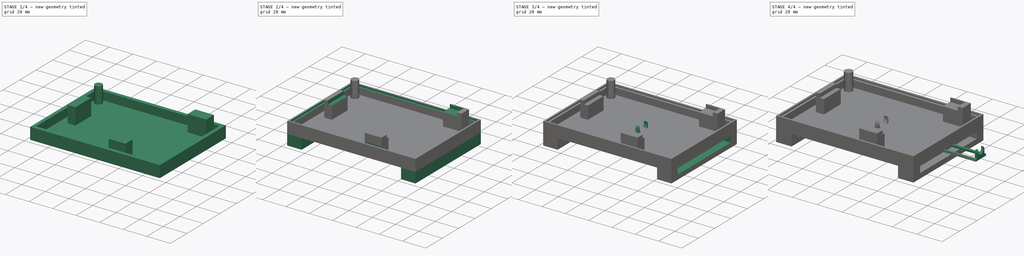
[diagram: build sequence overview — one tinted view per stage of 4, left to right]
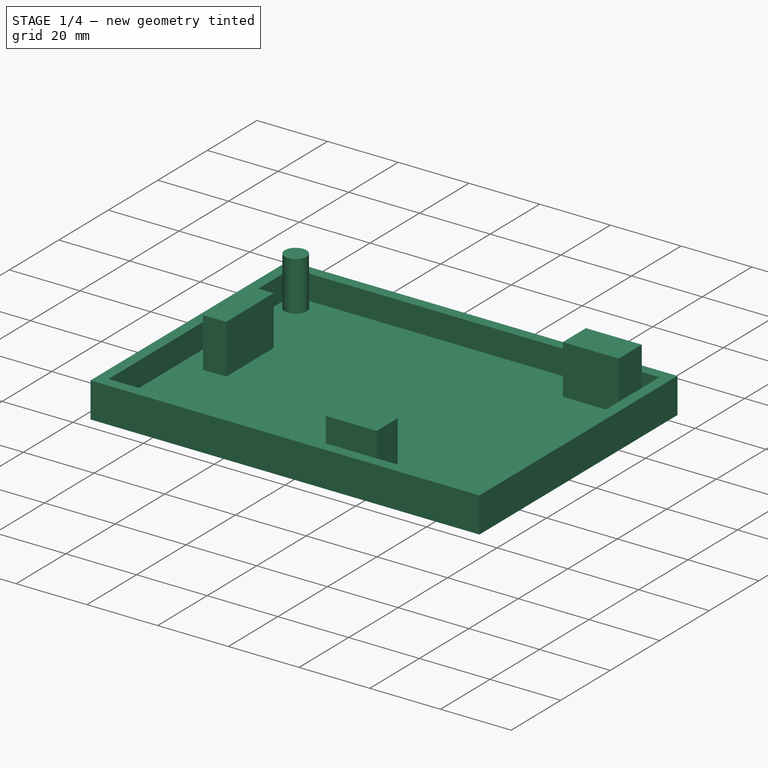
[diagram: stage 1 of 4 — iso view after this stage's code; geometry added in this stage tinted green]
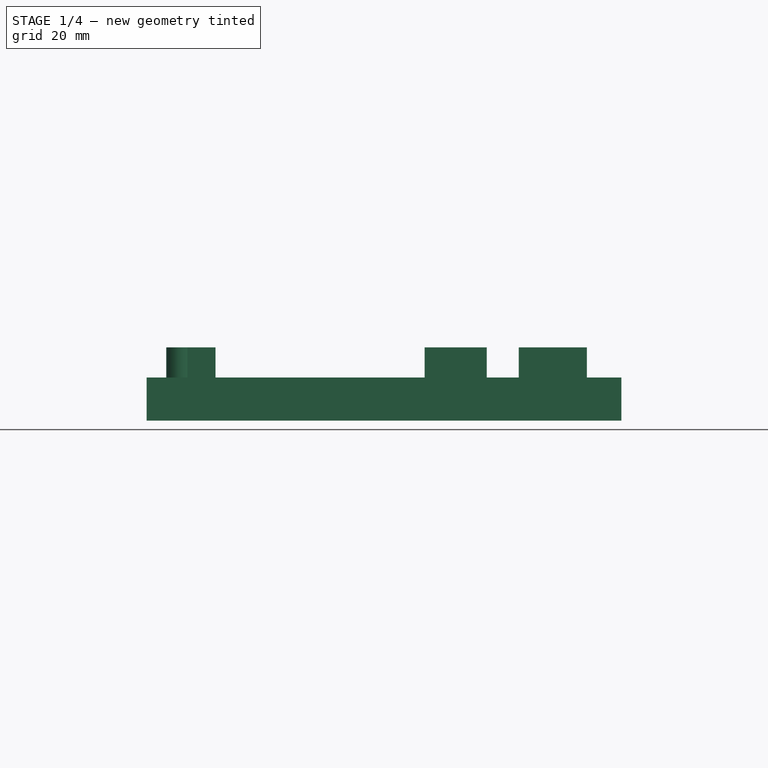
[diagram: stage 1 of 4 — front view after this stage's code; geometry added in this stage tinted green]
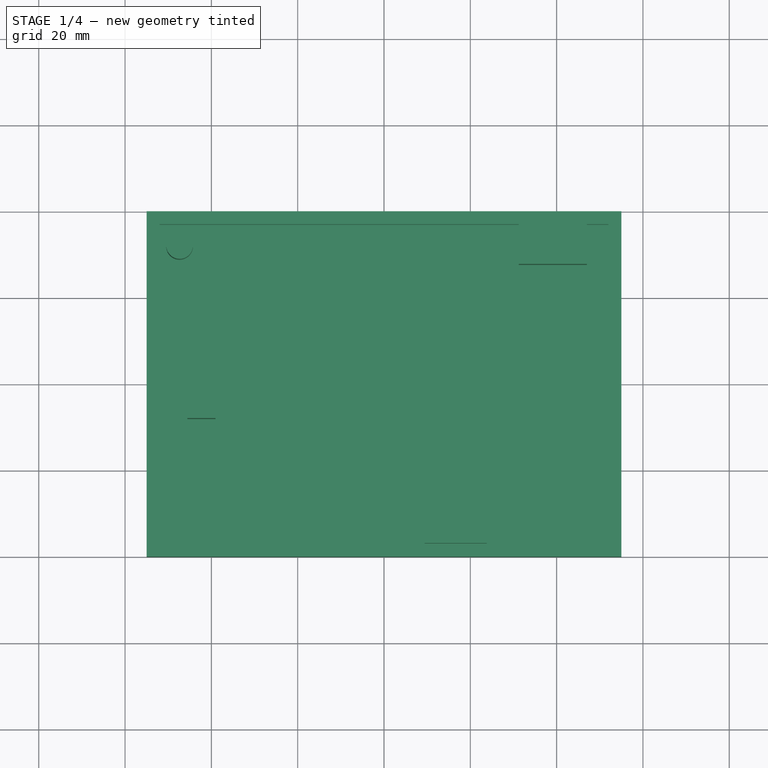
[diagram: stage 1 of 4 — top view after this stage's code; geometry added in this stage tinted green]
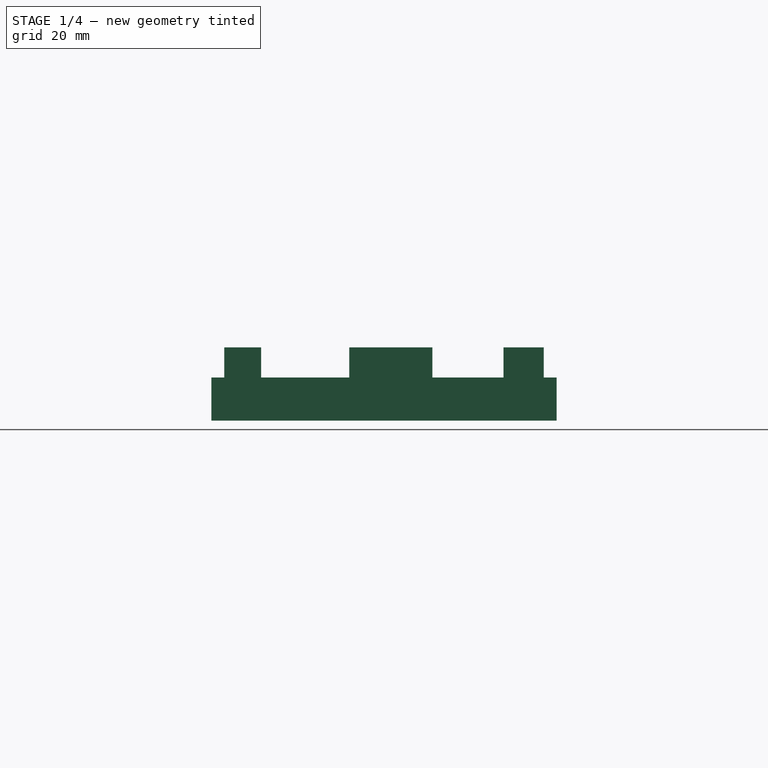
[diagram: stage 1 of 4 — right view after this stage's code; geometry added in this stage tinted green]
FCSTD DOCUMENT  (FreeCAD 1.0R39109 (Git))
Label: main_3D_bottom
License: All rights reserved
LicenseURL: http://en.wikipedia.org/wiki/All_rights_reserved
objects: Sketcher::SketchObject×12, PartDesign::Pad×6, PartDesign::Pocket×5, PartDesign::Body×3, App::VarSet×1, App::Part×1
note: 60 computed .brp shape members not serialized (recipe doc carries the construction recipe); baked Part::Feature solids carry a one-line shape summary decoded from their .brp
EXTERNAL_REF file=pcb.FCStd obj=VarSet

FEATURE [Sketcher::SketchObject] Sketch
  ArcFitTolerance = 0
  AttachmentSupport = -> [XY_Plane001]
  FullyConstrained = true
  MakeInternals = false
  MapMode = 5
  expr: Constraints[10] = VarSet.box_len
  expr: Constraints[9] = VarSet.box_width
  sketch-geometry (4):
    g0: LineSegment StartX=-55 StartY=40 StartZ=0 EndX=55 EndY=40 EndZ=0
    g1: LineSegment StartX=55 StartY=40 StartZ=0 EndX=55 EndY=-40 EndZ=0
    g2: LineSegment StartX=55 StartY=-40 StartZ=0 EndX=-55 EndY=-40 EndZ=0
    g3: LineSegment StartX=-55 StartY=-40 StartZ=0 EndX=-55 EndY=40 EndZ=0
  constraints (11):
    c: Coincident(g0,g1)
    c: Coincident(g1,g2)
    c: Coincident(g2,g3)
    c: Coincident(g3,g0)
    c: Horizontal(g0)
    c: Horizontal(g2)
    c: Vertical(g1)
    c: Vertical(g3)
    c: Symmetric(g0,g1,g-1)
    c: DistanceX(g0,g0) = 110
    c: DistanceY(g1,g1) = 80
FEATURE [PartDesign::Pad] Pad
  Direction = (0,0,1)
  Length = 10
  Length2 = 10
  Profile = -> Sketch
  ReferenceAxis = -> Sketch [N_Axis]
  Suppressed = false
  Type = 0
FEATURE [Sketcher::SketchObject] Sketch001
  ArcFitTolerance = 0
  AttachmentSupport = -> [Pad]
  ExternalGeometry = -> [Pad]
  FullyConstrained = true
  MakeInternals = false
  MapMode = 5
  Placement = pos=(0,0,10) rot=(0,0,1;0rad)
  expr: Constraints[16] = VarSet.Width
  sketch-geometry (6):
    g0: LineSegment StartX=-52 StartY=37 StartZ=0 EndX=52 EndY=37 EndZ=0
    g1: LineSegment StartX=52 StartY=37 StartZ=0 EndX=52 EndY=-37 EndZ=0
    g2: LineSegment StartX=52 StartY=-37 StartZ=0 EndX=-52 EndY=-37 EndZ=0
    g3: LineSegment StartX=-52 StartY=-37 StartZ=0 EndX=-52 EndY=37 EndZ=0
    g4: LineSegment [constr] StartX=52 StartY=37 StartZ=0 EndX=55 EndY=37 EndZ=0
    g5: LineSegment [constr] StartX=52 StartY=37 StartZ=0 EndX=52 EndY=40 EndZ=0
  constraints (17):
    c: Coincident(g0,g1)
    c: Coincident(g1,g2)
    c: Coincident(g2,g3)
    c: Coincident(g3,g0)
    c: Horizontal(g0)
    c: Horizontal(g2)
    c: Vertical(g1)
    c: Vertical(g3)
    c: Symmetric(g0,g1,g-1)
    c: Coincident(g4,g0)
    c: PointOnObject(g4,g-3)
    c: Horizontal(g4)
    c: Coincident(g5,g0)
    c: PointOnObject(g5,g-4)
    c: Vertical(g5)
    c: Equal(g5,g4)
    c: DistanceX(g4,g4) = 3
FEATURE [PartDesign::Pocket] Pocket
  BaseFeature = -> Pad
  Direction = (0,0,-1)
  Length = 0
  Length2 = 5
  Offset = -3
  Profile = -> Sketch001
  ReferenceAxis = -> Sketch001 [N_Axis]
  Suppressed = false
  Type = 3
  UpToFace = -> Pad [Face5]
  expr: Offset = -VarSet.Width
FEATURE [PartDesign::Body] Body001  label="Antenne_holder"
  AllowCompound = false
  Group = -> [Sketch002,Pad001,Sketch003,Pad002,Sketch005,Pad003,Sketch006,Pocket001]
  Origin = -> Origin002
  Placement = pos=(-35.827,17.488,2) rot=(0,0,-1;0.523599rad)
  Tip = -> Pocket001
FEATURE [Sketcher::SketchObject] Sketch007
  ArcFitTolerance = 1e-06
  AttachmentSupport = -> [Pocket]
  ExternalGeometry = -> [Pocket]
  FullyConstrained = false
  MakeInternals = false
  MapMode = 5
  Placement = pos=(0,0,3) rot=(0,0,1;0rad)
  sketch-geometry (13):
    g0: LineSegment StartX=-45.5641 StartY=11.1988 StartZ=0 EndX=-45.5641 EndY=-8.03746 EndZ=0
    g1: LineSegment StartX=-45.5641 StartY=-8.03746 StartZ=0 EndX=-39.0375 EndY=-8.03746 EndZ=0
    g2: LineSegment StartX=-39.0375 StartY=-8.03746 StartZ=0 EndX=-39.0375 EndY=11.1988 EndZ=0
    g3: LineSegment StartX=-39.0375 StartY=11.1988 StartZ=0 EndX=-45.5641 EndY=11.1988 EndZ=0
    g4: LineSegment StartX=9.41959 StartY=-28.476 StartZ=0 EndX=9.41959 EndY=-37 EndZ=0
    g5: LineSegment StartX=9.41959 StartY=-37 StartZ=0 EndX=23.821 EndY=-37 EndZ=0
    g6: LineSegment StartX=23.821 StartY=-37 StartZ=0 EndX=23.821 EndY=-28.476 EndZ=0
    g7: LineSegment StartX=23.821 StartY=-28.476 StartZ=0 EndX=9.41959 EndY=-28.476 EndZ=0
    g8: LineSegment StartX=31.2094 StartY=37 StartZ=0 EndX=31.2094 EndY=27.6871 EndZ=0
    g9: LineSegment StartX=31.2094 StartY=27.6871 StartZ=0 EndX=47.0106 EndY=27.6871 EndZ=0
    g10: LineSegment StartX=47.0106 StartY=27.6871 StartZ=0 EndX=47.0106 EndY=37 EndZ=0
    g11: LineSegment StartX=47.0106 StartY=37 StartZ=0 EndX=31.2094 EndY=37 EndZ=0
    g12: Circle CenterX=-47.363 CenterY=31.9613 CenterZ=0 NormalX=0 NormalY=0 NormalZ=1 AngleXU=0 Radius=3.09085
  constraints (26):
    c: Coincident(g0,g1)
    c: Coincident(g1,g2)
    c: Coincident(g2,g3)
    c: Coincident(g3,g0)
    c: Vertical(g0)
    c: Vertical(g2)
    c: Horizontal(g1)
    c: Horizontal(g3)
    c: Coincident(g4,g5)
    c: Coincident(g5,g6)
    c: Coincident(g6,g7)
    c: Coincident(g7,g4)
    c: Vertical(g4)
    c: Vertical(g6)
    c: Horizontal(g5)
    c: Horizontal(g7)
    c: Coincident(g8,g9)
    c: Coincident(g9,g10)
    c: Coincident(g10,g11)
    c: Coincident(g11,g8)
    c: Vertical(g8)
    c: Vertical(g10)
    c: Horizontal(g9)
    c: Horizontal(g11)
    c: PointOnObject(g8,g-4)
    c: PointOnObject(g5,g-3)
FEATURE [PartDesign::Pad] Pad004
  BaseFeature = -> Pocket
  Direction = (0,0,1)
  Length = 14
  Length2 = 10
  Profile = -> Sketch007
  ReferenceAxis = -> Sketch007 [N_Axis]
  Suppressed = false
  Type = 0
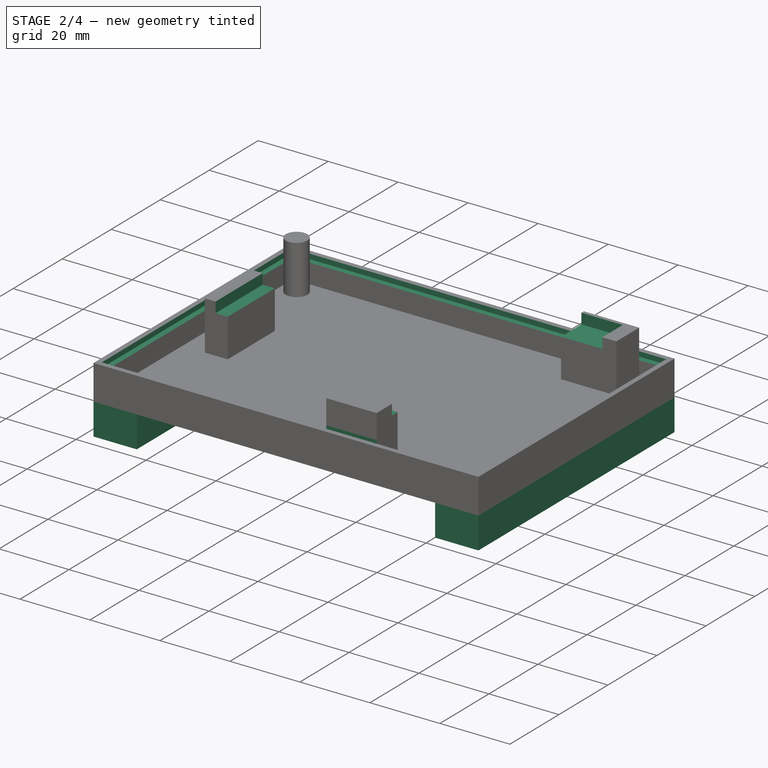
[diagram: stage 2 of 4 — iso view after this stage's code; geometry added in this stage tinted green]
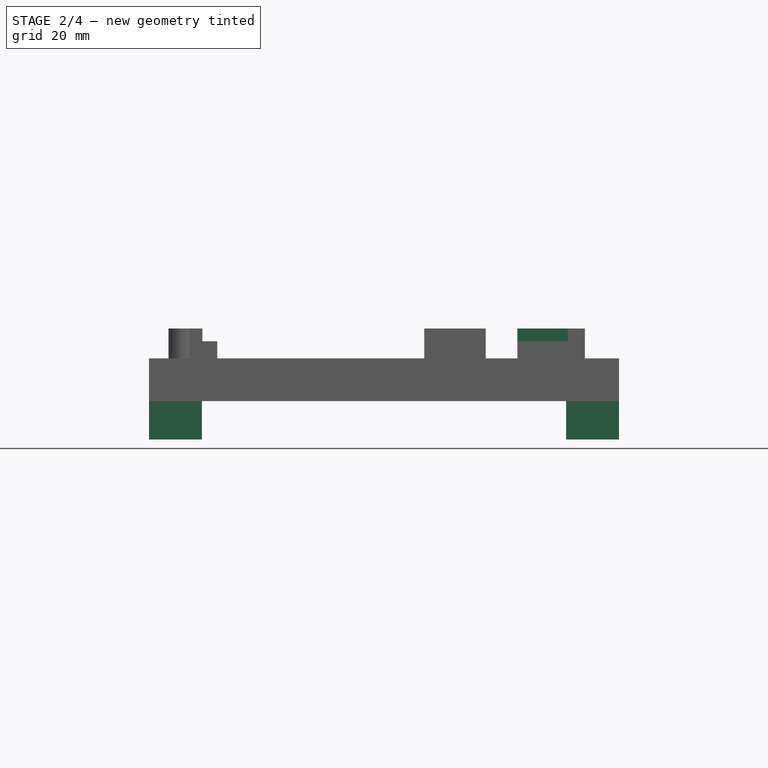
[diagram: stage 2 of 4 — front view after this stage's code; geometry added in this stage tinted green]
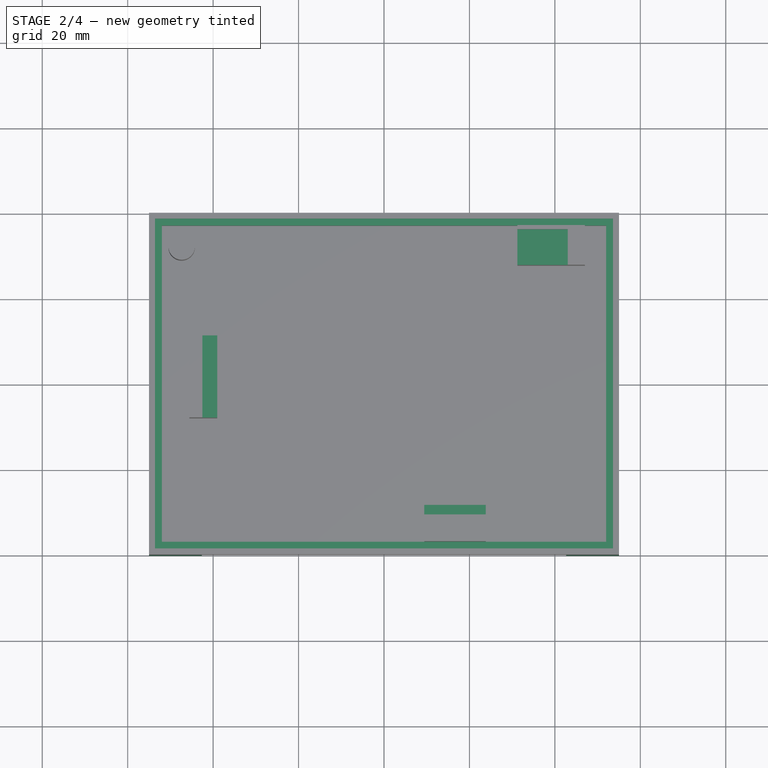
[diagram: stage 2 of 4 — top view after this stage's code; geometry added in this stage tinted green]
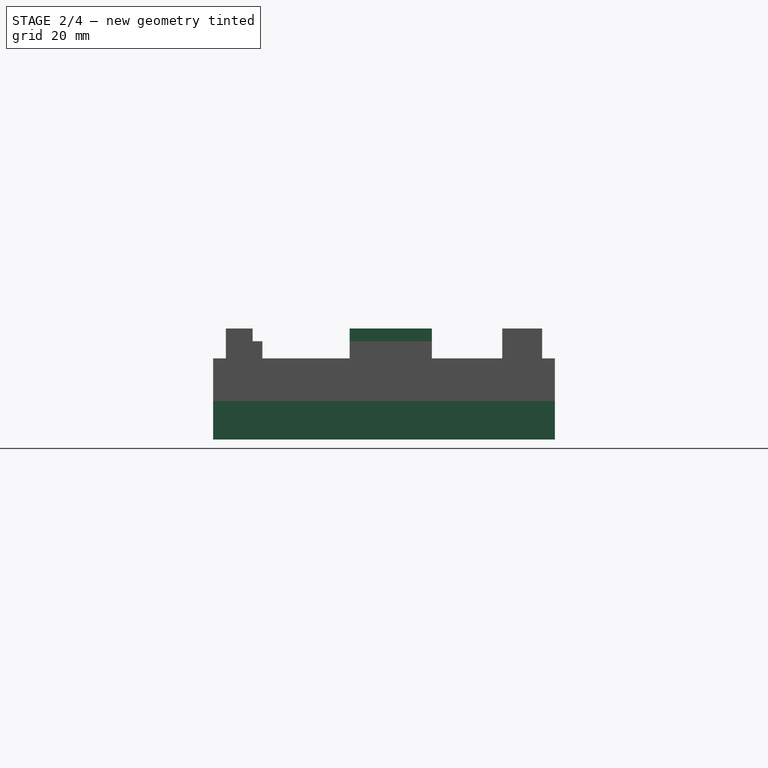
[diagram: stage 2 of 4 — right view after this stage's code; geometry added in this stage tinted green]
FEATURE [Sketcher::SketchObject] Sketch008
  ArcFitTolerance = 1e-06
  AttachmentSupport = -> [Pad004]
  ExternalGeometry = -> [Pad004]
  FullyConstrained = true
  MakeInternals = false
  MapMode = 5
  Placement = pos=(0,0,17) rot=(0,0,1;0rad)
  expr: Constraints[8] = pcb#VarSet.Ppt_PCB_Len
  expr: Constraints[9] = <<pcb>>#VarSet.PCB_Width
  sketch-geometry (4):
    g0: LineSegment StartX=-42.5 StartY=36 StartZ=0 EndX=-42.5 EndY=-30.75 EndZ=0
    g1: LineSegment StartX=-42.5 StartY=-30.75 StartZ=0 EndX=43 EndY=-30.75 EndZ=0
    g2: LineSegment StartX=43 StartY=-30.75 StartZ=0 EndX=43 EndY=36 EndZ=0
    g3: LineSegment StartX=43 StartY=36 StartZ=0 EndX=-42.5 EndY=36 EndZ=0
  constraints (14):
    c: Coincident(g0,g1)
    c: Coincident(g1,g2)
    c: Coincident(g2,g3)
    c: Coincident(g3,g0)
    c: Vertical(g0)
    c: Vertical(g2)
    c: Horizontal(g1)
    c: Horizontal(g3)
    c: DistanceX(g3,g3) = 85.5
    c: DistanceY(g2,g2) = 66.75
    c: DistanceX(g2,g-3) = 9
    c: DistanceY(g2,g-3) = 1
    c: DistanceY(g-4,g0) = 6.25
    c: DistanceX(g-4,g0) = 9.5
FEATURE [PartDesign::Pocket] Pocket002
  BaseFeature = -> Pad004
  Direction = (0,0,-1)
  Length = 3
  Length2 = 5
  Profile = -> Sketch008
  ReferenceAxis = -> Sketch008 [N_Axis]
  Suppressed = false
  Type = 0
FEATURE [Sketcher::SketchObject] Sketch009
  ArcFitTolerance = 1e-06
  AttachmentSupport = -> [Pocket002]
  ExternalGeometry = -> [Pocket002]
  FullyConstrained = true
  MakeInternals = false
  MapMode = 5
  Placement = pos=(0,0,10) rot=(0,0,1;0rad)
  sketch-geometry (8):
    g0: LineSegment StartX=-53.6 StartY=38.6 StartZ=0 EndX=-53.6 EndY=-38.6 EndZ=0
    g1: LineSegment StartX=-53.6 StartY=-38.6 StartZ=0 EndX=53.6 EndY=-38.6 EndZ=0
    g2: LineSegment StartX=53.6 StartY=-38.6 StartZ=0 EndX=53.6 EndY=38.6 EndZ=0
    g3: LineSegment StartX=53.6 StartY=38.6 StartZ=0 EndX=-53.6 EndY=38.6 EndZ=0
    g4: LineSegment StartX=-52 StartY=37 StartZ=0 EndX=-52 EndY=-37 EndZ=0
    g5: LineSegment StartX=-52 StartY=-37 StartZ=0 EndX=52 EndY=-37 EndZ=0
    g6: LineSegment StartX=52 StartY=-37 StartZ=0 EndX=52 EndY=37 EndZ=0
    g7: LineSegment StartX=52 StartY=37 StartZ=0 EndX=-52 EndY=37 EndZ=0
  constraints (21):
    c: Coincident(g0,g1)
    c: Coincident(g1,g2)
    c: Coincident(g2,g3)
    c: Coincident(g3,g0)
    c: Vertical(g0)
    c: Vertical(g2)
    c: Horizontal(g1)
    c: Horizontal(g3)
    c: Symmetric(g0,g1,g-1)
    c: DistanceY(g0,g-3) = 1.4
    c: DistanceX(g-3,g0) = 1.4
    c: Coincident(g4,g5)
    c: Coincident(g5,g6)
    c: Coincident(g6,g7)
    c: Coincident(g7,g4)
    c: Vertical(g4)
    c: Vertical(g6)
    c: Horizontal(g5)
    c: Horizontal(g7)
    c: Coincident(g4,g-5)
    c: Coincident(g5,g-7)
FEATURE [PartDesign::Pocket] Pocket003
  BaseFeature = -> Pocket002
  Direction = (0,0,-1)
  Length = 1.4
  Length2 = 5
  Profile = -> Sketch009
  ReferenceAxis = -> Sketch009 [N_Axis]
  Suppressed = false
  Type = 0
FEATURE [PartDesign::Body] Body002  label="Corps001"
  AllowCompound = false
  Origin = -> Origin003
FEATURE [Sketcher::SketchObject] Sketch010
  ArcFitTolerance = 1e-06
  AttachmentSupport = -> [Pocket003]
  ExternalGeometry = -> [Pocket003]
  FullyConstrained = false
  MakeInternals = false
  MapMode = 5
  Placement = pos=(0,0,0) rot=(1,0,0;3.14159rad)
  sketch-geometry (8):
    g0: LineSegment StartX=-55 StartY=40 StartZ=0 EndX=-55 EndY=-40 EndZ=0
    g1: LineSegment StartX=-55 StartY=-40 StartZ=0 EndX=-42.6225 EndY=-40 EndZ=0
    g2: LineSegment StartX=-42.6225 StartY=-40 StartZ=0 EndX=-42.6225 EndY=40 EndZ=0
    g3: LineSegment StartX=-42.6225 StartY=40 StartZ=0 EndX=-55 EndY=40 EndZ=0
    g4: LineSegment StartX=55 StartY=40 StartZ=0 EndX=42.6225 EndY=40 EndZ=0
    g5: LineSegment StartX=42.6225 StartY=40 StartZ=0 EndX=42.6225 EndY=-40 EndZ=0
    g6: LineSegment StartX=42.6225 StartY=-40 StartZ=0 EndX=55 EndY=-40 EndZ=0
    g7: LineSegment StartX=55 StartY=-40 StartZ=0 EndX=55 EndY=40 EndZ=0
  constraints (19):
    c: Coincident(g0,g1)
    c: Coincident(g1,g2)
    c: Coincident(g2,g3)
    c: Coincident(g3,g0)
    c: Vertical(g2)
    c: Horizontal(g1)
    c: Horizontal(g3)
    c: Coincident(g4,g5)
    c: Coincident(g5,g6)
    c: Coincident(g6,g7)
    c: Coincident(g7,g4)
    c: Horizontal(g4)
    c: Horizontal(g6)
    c: Vertical(g5)
    c: Coincident(g4,g-4)
    c: Coincident(g6,g-4)
    c: Coincident(g0,g-3)
    c: Coincident(g0,g-3)
    c: Equal(g3,g4)
FEATURE [PartDesign::Pad] Pad005
  BaseFeature = -> Pocket003
  Direction = (0,0,-1)
  Length = 9
  Length2 = 10
  Profile = -> Sketch010
  ReferenceAxis = -> Sketch010 [N_Axis]
  Suppressed = false
  Type = 0
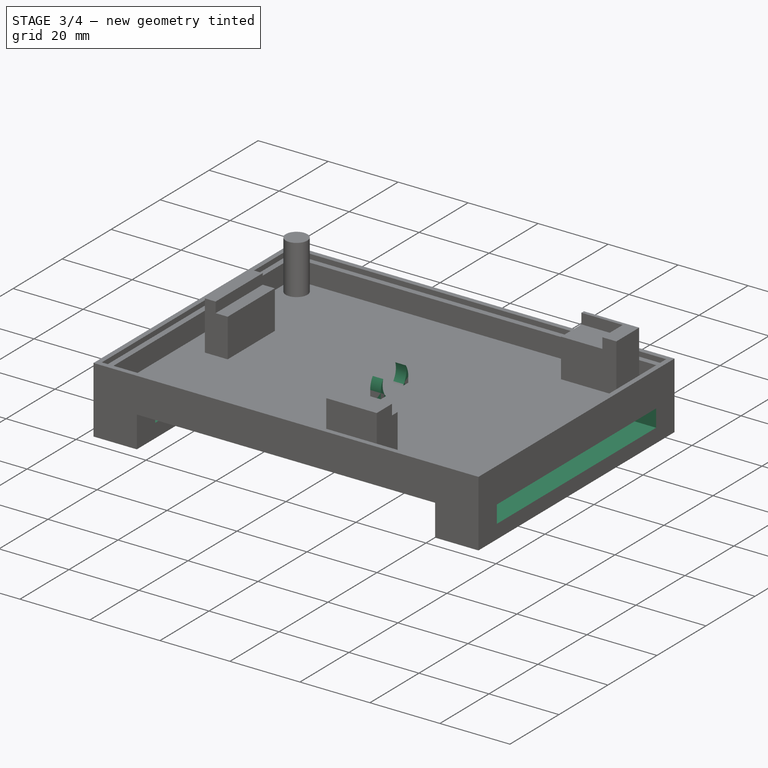
[diagram: stage 3 of 4 — iso view after this stage's code; geometry added in this stage tinted green]
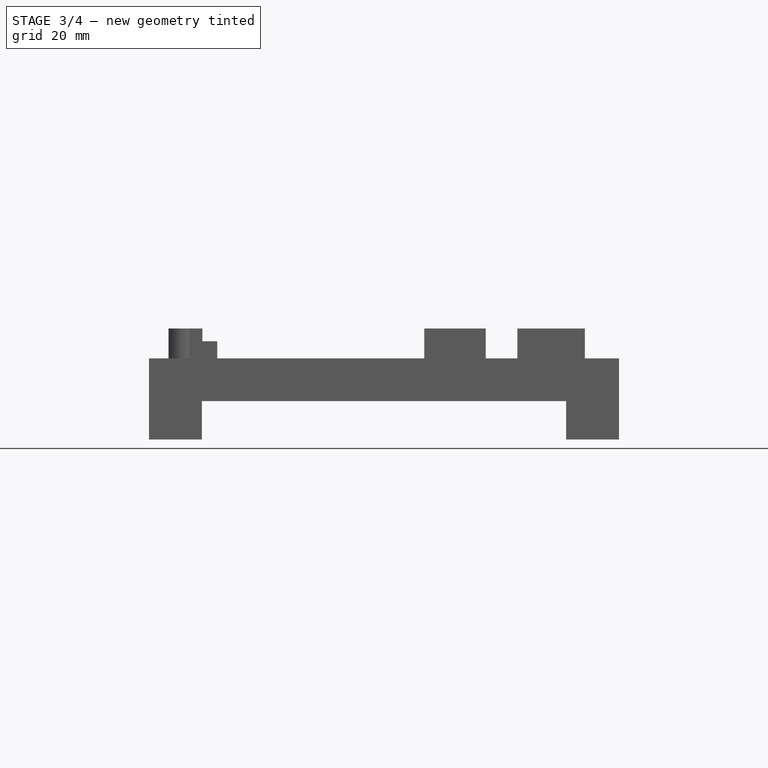
[diagram: stage 3 of 4 — front view after this stage's code; geometry added in this stage tinted green]
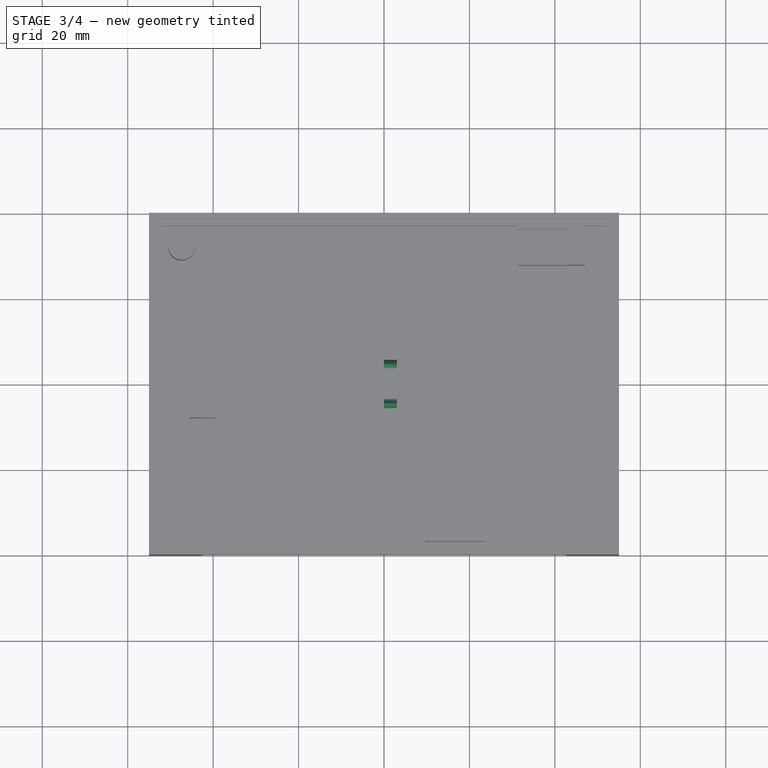
[diagram: stage 3 of 4 — top view after this stage's code; geometry added in this stage tinted green]
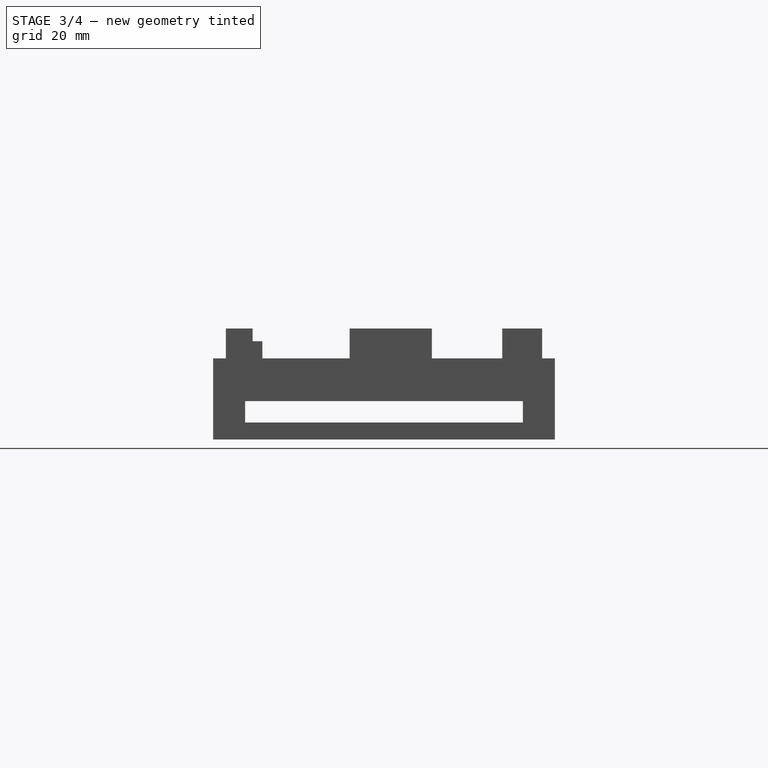
[diagram: stage 3 of 4 — right view after this stage's code; geometry added in this stage tinted green]
FEATURE [App::VarSet] VarSet
  Width = 3
  box_len = 80
  box_width = 110
  pcb_distance_bottom = 6.25
  pcb_distance_left = 9.5
FEATURE [Sketcher::SketchObject] Sketch002
  ArcFitTolerance = 1e-06
  AttachmentSupport = -> [YZ_Plane002]
  FullyConstrained = true
  MakeInternals = false
  MapMode = 5
  Placement = pos=(0,0,0) rot=(0.57735,0.57735,0.57735;2.0944rad)
  sketch-geometry (11):
    g0: LineSegment StartX=-5.63478 StartY=4.61296 StartZ=0 EndX=-5.63478 EndY=0 EndZ=0
    g1: LineSegment StartX=-5.63478 StartY=0 StartZ=0 EndX=5.63478 EndY=0 EndZ=0
    g2: LineSegment StartX=5.63478 StartY=0 StartZ=0 EndX=5.63478 EndY=4.61299 EndZ=0
    g3: ArcOfCircle CenterX=0 CenterY=6.35 CenterZ=0 NormalX=0 NormalY=0 NormalZ=1 AngleXU=0 Radius=4.85 StartAngle=2.82716 EndAngle=6.59762
    g4: LineSegment [constr] StartX=0 StartY=6.35 StartZ=0 EndX=5.63478 EndY=4.61299 EndZ=0
    g5: GeomPoint [constr] X=4.63478 Y=4.92125 Z=0
    g6: LineSegment [constr] StartX=0 StartY=6.35 StartZ=0 EndX=0 EndY=0 EndZ=0
    g7: GeomPoint [constr] X=0 Y=1.5 Z=0
    g8: LineSegment [constr] StartX=-5.63478 StartY=4.61296 StartZ=0 EndX=0 EndY=6.35 EndZ=0
    g9: ArcOfCircle CenterX=0 CenterY=4.61299 CenterZ=0 NormalX=0 NormalY=0 NormalZ=1 AngleXU=0 Radius=5.63478 StartAngle=0 EndAngle=0.611956
    g10: ArcOfCircle CenterX=0 CenterY=4.61299 CenterZ=0 NormalX=0 NormalY=0 NormalZ=1 AngleXU=0 Radius=5.63478 StartAngle=2.52964 EndAngle=3.1416
  constraints (28):
    c: Vertical(g2)
    c: Coincident(g2,g1)
    c: Horizontal(g1)
    c: Coincident(g1,g0)
    c: PointOnObject(g3,g-2)
    c: PointOnObject(g5,g4)
    c: PointOnObject(g5,g3)
    c: DistanceX(g5,g4) = 1
    c: Coincident(g6,g4)
    c: Symmetric(g1,g1,g6)
    c: PointOnObject(g7,g3)
    c: Coincident(g4,g3)
    c: Coincident(g4,g2)
    c: Coincident(g8,g0)
    c: Coincident(g8,g3)
    c: Diameter(g3) = 9.7
    c: DistanceY(g6,g7) = 1.5
    c: Coincident(g-1,g6)
    c: PointOnObject(g7,g6)
    c: PointOnObject(g9,g6)
    c: Tangent(g9,g2) = -1.5708
    c: Coincident(g10,g0)
    c: Vertical(g0)
    c: Equal(g9,g10)
    c: Coincident(g9,g10)
    c: Coincident(g3,g9)
    c: Coincident(g3,g10)
    c: DistanceY(g3,g3) = 1.5
FEATURE [PartDesign::Pad] Pad001
  Direction = (1,0,0)
  Length = 3
  Length2 = 10
  Placement = pos=(0,0,0) rot=(1,1,1;2.0944rad)
  Profile = -> Sketch002
  ReferenceAxis = -> Sketch002 [N_Axis]
  Suppressed = false
  Type = 0
FEATURE [Sketcher::SketchObject] Sketch011
  ArcFitTolerance = 1e-06
  AttachmentSupport = -> [Pad005]
  ExternalGeometry = -> [Pad005]
  FullyConstrained = true
  MakeInternals = false
  MapMode = 5
  Placement = pos=(-55,0,0) rot=(0.57735,-0.57735,-0.57735;2.0944rad)
  sketch-geometry (4):
    g0: LineSegment StartX=-32.5 StartY=0 StartZ=0 EndX=-32.5 EndY=-5 EndZ=0
    g1: LineSegment StartX=-32.5 StartY=-5 StartZ=0 EndX=32.5 EndY=-5 EndZ=0
    g2: LineSegment StartX=32.5 StartY=-5 StartZ=0 EndX=32.5 EndY=0 EndZ=0
    g3: LineSegment StartX=32.5 StartY=0 StartZ=0 EndX=-32.5 EndY=0 EndZ=0
  constraints (11):
    c: Coincident(g0,g1)
    c: Coincident(g1,g2)
    c: Coincident(g2,g3)
    c: Coincident(g3,g0)
    c: Vertical(g0)
    c: Vertical(g2)
    c: Horizontal(g1)
    c: Horizontal(g3)
    c: Symmetric(g0,g2,g-1)
    c: DistanceX(g1,g1) = 65
    c: DistanceY(g0,g0) = 5
FEATURE [PartDesign::Pocket] Pocket004
  BaseFeature = -> Pad005
  Direction = (1,0,0)
  Length = 5
  Length2 = 5
  Profile = -> Sketch011
  ReferenceAxis = -> Sketch011 [N_Axis]
  Suppressed = false
  Type = 1
FEATURE [Sketcher::SketchObject] Sketch012
  ArcFitTolerance = 1e-06
  AttachmentSupport = -> [Pocket004]
  ExternalGeometry = -> [Pocket004]
  FullyConstrained = true
  MakeInternals = false
  MapMode = 5
  Placement = pos=(0,-8.03746,0) rot=(1,0,0;1.5708rad)
  constraints (1):
    c: DistanceY(g-3,g-4) = 4
FEATURE [PartDesign::Body] Body  label="Corps"
  AllowCompound = false
  Group = -> [Sketch,Pad,Sketch001,Pocket,Sketch007,Pad004,Sketch008,Pocket002,Sketch009,Pocket003,Sketch010,Pad005,Sketch011,Pocket004,Sketch012]
  Origin = -> Origin001
  Tip = -> Pocket004
FEATURE [App::Part] Part
  Group = -> [Body,Body001,Body002]
  Origin = -> Origin
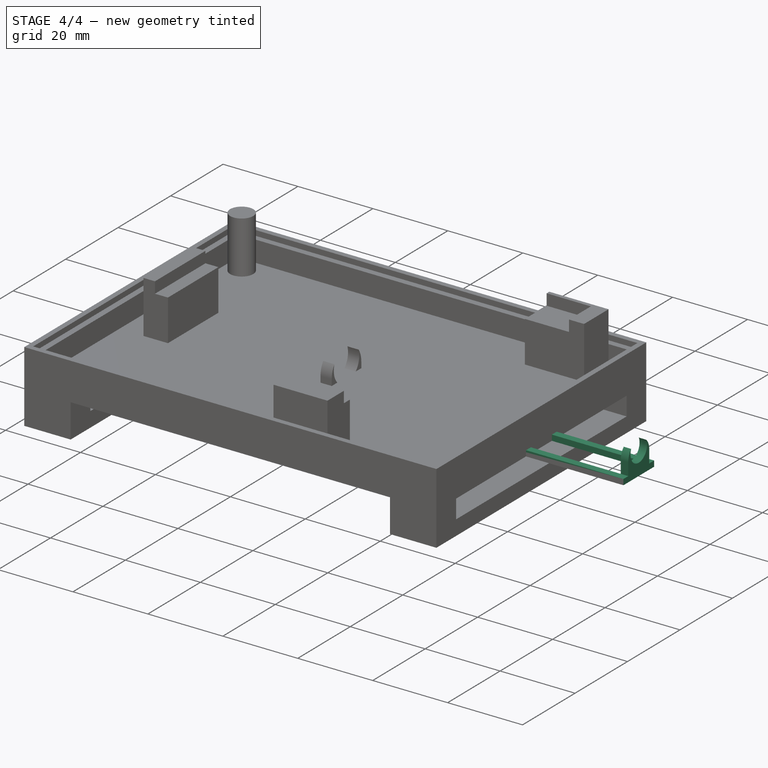
[diagram: stage 4 of 4 — iso view after this stage's code; geometry added in this stage tinted green]
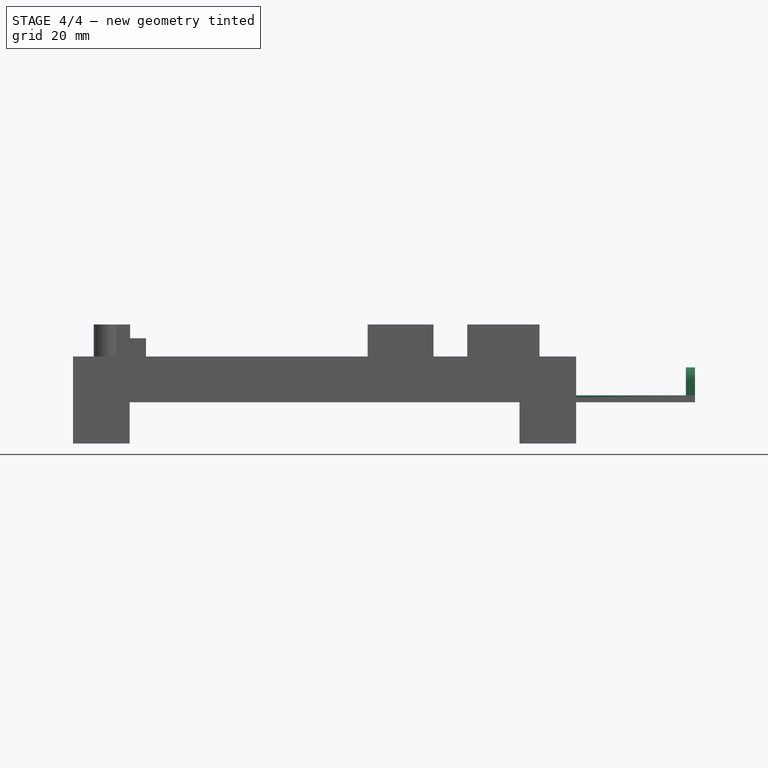
[diagram: stage 4 of 4 — front view after this stage's code; geometry added in this stage tinted green]
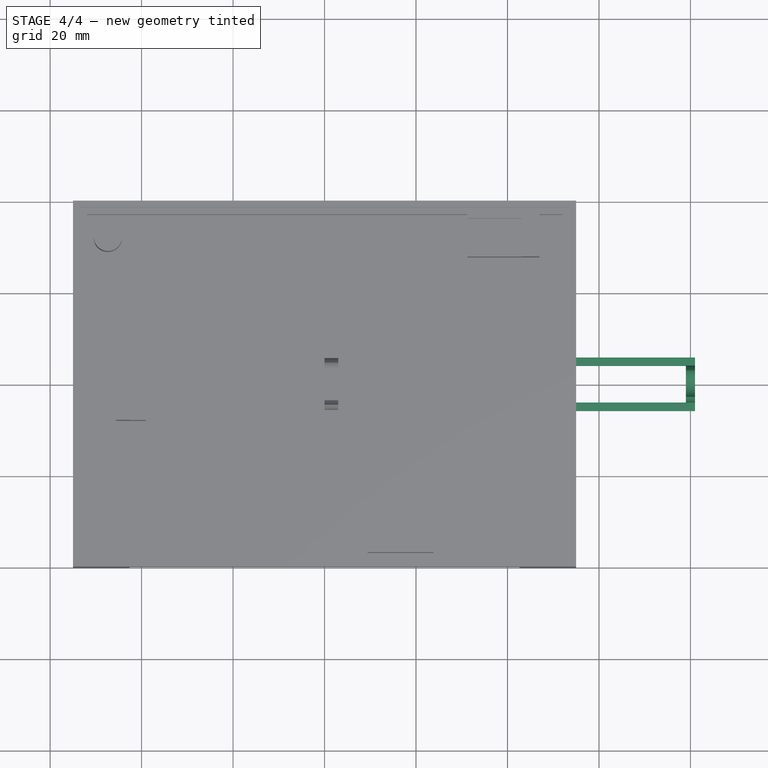
[diagram: stage 4 of 4 — top view after this stage's code; geometry added in this stage tinted green]
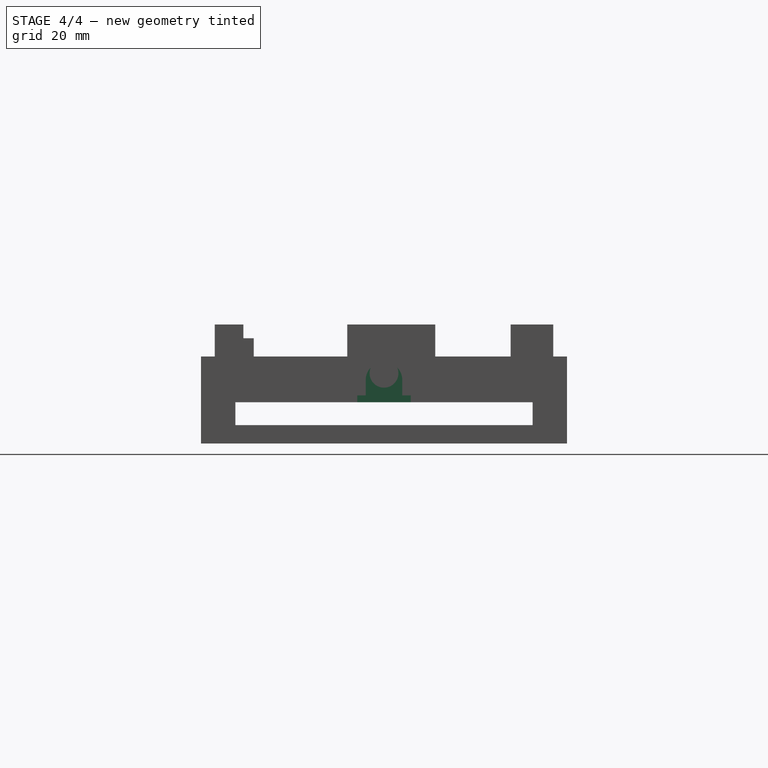
[diagram: stage 4 of 4 — right view after this stage's code; geometry added in this stage tinted green]
FEATURE [Sketcher::SketchObject] Sketch003
  ArcFitTolerance = 1e-06
  AttachmentSupport = -> [Pad001]
  ExternalGeometry = -> [Pad001]
  FullyConstrained = true
  MakeInternals = false
  MapMode = 5
  Placement = pos=(3,0,0) rot=(0.57735,0.57735,0.57735;2.0944rad)
  sketch-geometry (7):
    g0: ArcOfCircle CenterX=7e-16 CenterY=6.35 CenterZ=0 NormalX=0 NormalY=0 NormalZ=1 AngleXU=0 Radius=3.15 StartAngle=2.72458 EndAngle=6.70019
    g1: LineSegment StartX=-4 StartY=0 StartZ=0 EndX=4 EndY=0 EndZ=0
    g2: LineSegment StartX=4 StartY=0 StartZ=0 EndX=4 EndY=4.85 EndZ=0
    g3: LineSegment [constr] StartX=4 StartY=4.85 StartZ=0 EndX=-4 EndY=4.85 EndZ=0
    g4: LineSegment StartX=-4 StartY=4.85 StartZ=0 EndX=-4 EndY=0 EndZ=0
    g5: ArcOfCircle CenterX=-1e-16 CenterY=4.85 CenterZ=0 NormalX=0 NormalY=0 NormalZ=1 AngleXU=0 Radius=4 StartAngle=0 EndAngle=0.766972
    g6: ArcOfCircle CenterX=-1e-16 CenterY=4.85 CenterZ=0 NormalX=0 NormalY=0 NormalZ=1 AngleXU=0 Radius=4 StartAngle=2.37462 EndAngle=3.14159
  constraints (20):
    c: Coincident(g0,g-3)
    c: Coincident(g1,g2)
    c: Coincident(g2,g3)
    c: Coincident(g3,g4)
    c: Coincident(g4,g1)
    c: Horizontal(g1)
    c: Horizontal(g3)
    c: Vertical(g2)
    c: Vertical(g4)
    c: Coincident(g6,g4)
    c: Symmetric(g1,g1,g-1)
    c: Tangent(g5,g2) = -1.5708
    c: DistanceY(g5,g0) = 1.5
    c: PointOnObject(g0,g6)
    c: Equal(g5,g6)
    c: Coincident(g5,g0)
    c: PointOnObject(g6,g0)
    c: Coincident(g5,g6)
    c: Diameter(g0) = 6.3
    c: DistanceX(g1,g1) = 8
FEATURE [PartDesign::Pad] Pad002
  BaseFeature = -> Pad001
  Direction = (1,0,0)
  Length = 78
  Length2 = 10
  Offset = 7
  Placement = pos=(0,0,0) rot=(1,1,1;2.0944rad)
  Profile = -> Sketch003
  ReferenceAxis = -> Sketch003 [N_Axis]
  Suppressed = false
  Type = 0
FEATURE [Sketcher::SketchObject] Sketch006
  ArcFitTolerance = 1e-06
  AttachmentSupport = -> [Pad002]
  ExternalGeometry = -> [Pad002]
  FullyConstrained = true
  MakeInternals = false
  MapMode = 5
  Placement = pos=(0,0,3e-16) rot=(0.707107,0.707107,0;3.14159rad)
  sketch-geometry (4):
    g0: LineSegment StartX=-4 StartY=3 StartZ=0 EndX=4 EndY=3 EndZ=0
    g1: LineSegment StartX=4 StartY=3 StartZ=0 EndX=4 EndY=79 EndZ=0
    g2: LineSegment StartX=4 StartY=79 StartZ=0 EndX=-4 EndY=79 EndZ=0
    g3: LineSegment StartX=-4 StartY=79 StartZ=0 EndX=-4 EndY=3 EndZ=0
  constraints (10):
    c: Coincident(g0,g1)
    c: Coincident(g1,g2)
    c: Coincident(g2,g3)
    c: Coincident(g3,g0)
    c: Horizontal(g2)
    c: Vertical(g1)
    c: Vertical(g3)
    c: Coincident(g0,g-3)
    c: Coincident(g0,g-3)
    c: DistanceY(g3,g3) = 76
FEATURE [Sketcher::SketchObject] Sketch005
  ArcFitTolerance = 1e-06
  AttachmentSupport = -> [Pad001]
  ExternalGeometry = -> [Pad001]
  FullyConstrained = true
  MakeInternals = false
  MapMode = 5
  Placement = pos=(3,0,0) rot=(0.57735,0.57735,0.57735;2.0944rad)
  sketch-geometry (5):
    g0: LineSegment StartX=-5.85 StartY=0 StartZ=0 EndX=5.85 EndY=0 EndZ=0
    g1: LineSegment StartX=5.85 StartY=0 StartZ=0 EndX=5.85 EndY=1.5 EndZ=0
    g2: LineSegment StartX=5.85 StartY=1.5 StartZ=0 EndX=-5.85 EndY=1.5 EndZ=0
    g3: LineSegment StartX=-5.85 StartY=1.5 StartZ=0 EndX=-5.85 EndY=0 EndZ=0
    g4: GeomPoint X=0 Y=1.5 Z=0
  constraints (12):
    c: Coincident(g0,g1)
    c: Coincident(g1,g2)
    c: Coincident(g2,g3)
    c: Coincident(g3,g0)
    c: Horizontal(g0)
    c: Horizontal(g2)
    c: Vertical(g1)
    c: Vertical(g3)
    c: Coincident(g0,g-5)
    c: PointOnObject(g1,g-3)
    c: Symmetric(g2,g2,g4)
    c: PointOnObject(g4,g-4)
FEATURE [PartDesign::Pad] Pad003
  BaseFeature = -> Pad002
  Direction = (1,0,0)
  Length = 78
  Length2 = 10
  Placement = pos=(0,0,0) rot=(1,1,1;2.0944rad)
  Profile = -> Sketch005
  ReferenceAxis = -> Sketch005 [N_Axis]
  Suppressed = false
  Type = 0
FEATURE [PartDesign::Pocket] Pocket001
  BaseFeature = -> Pad003
  Direction = (0,0,1)
  Length = 8
  Length2 = 5
  Placement = pos=(0,0,0) rot=(1,1,1;2.0944rad)
  Profile = -> Sketch006
  ReferenceAxis = -> Sketch006 [N_Axis]
  Suppressed = false
  Type = 0
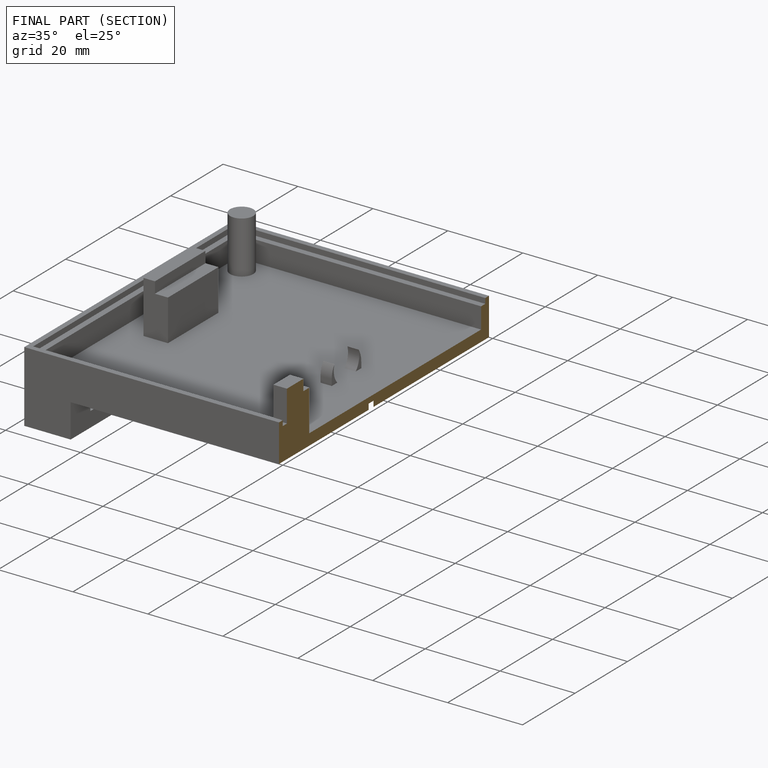
[diagram: finished part — half-section view (interior)]
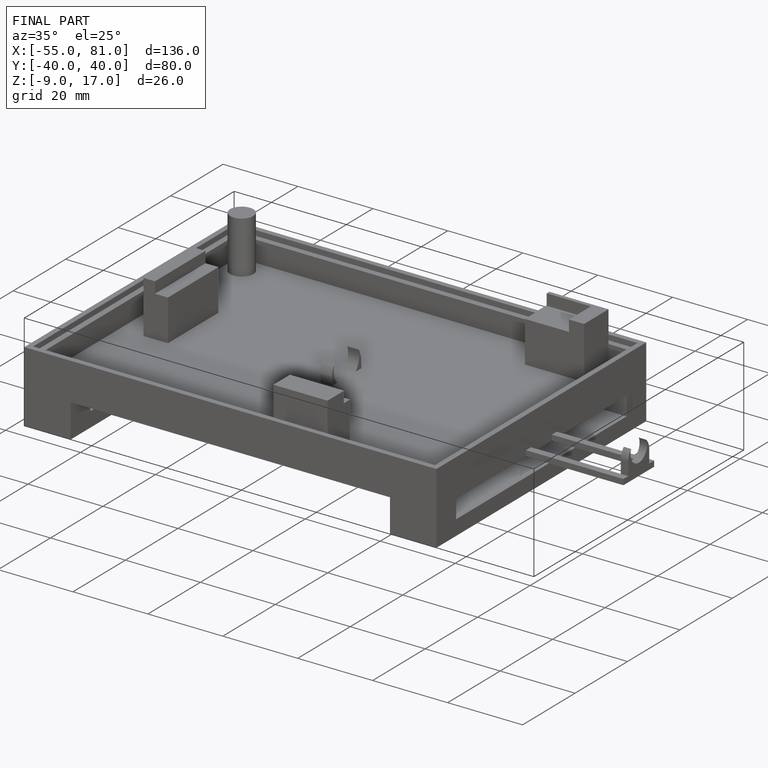
[diagram: finished part — iso view with bounding-box wireframe]
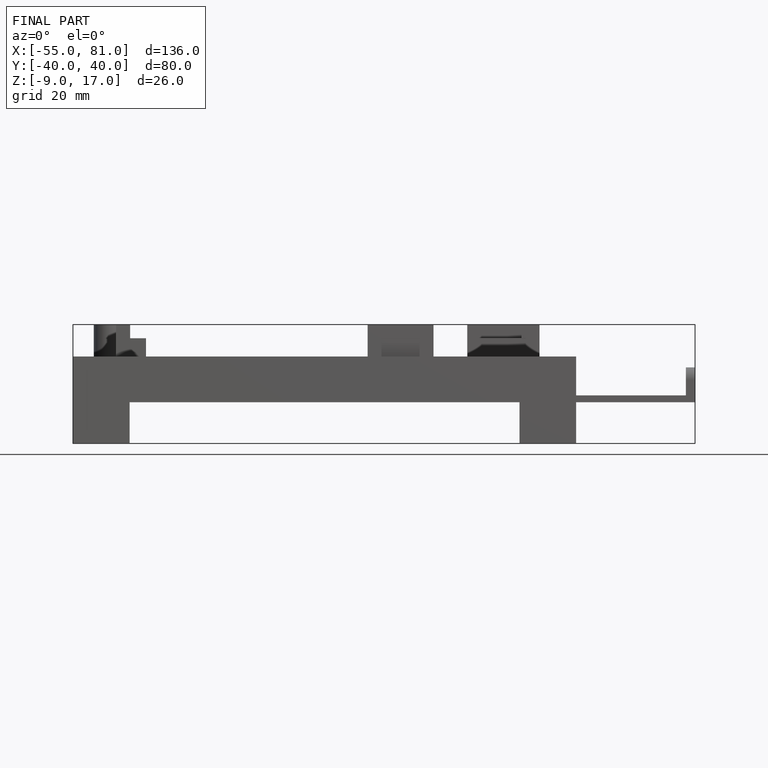
[diagram: finished part — front view with bounding-box wireframe]
